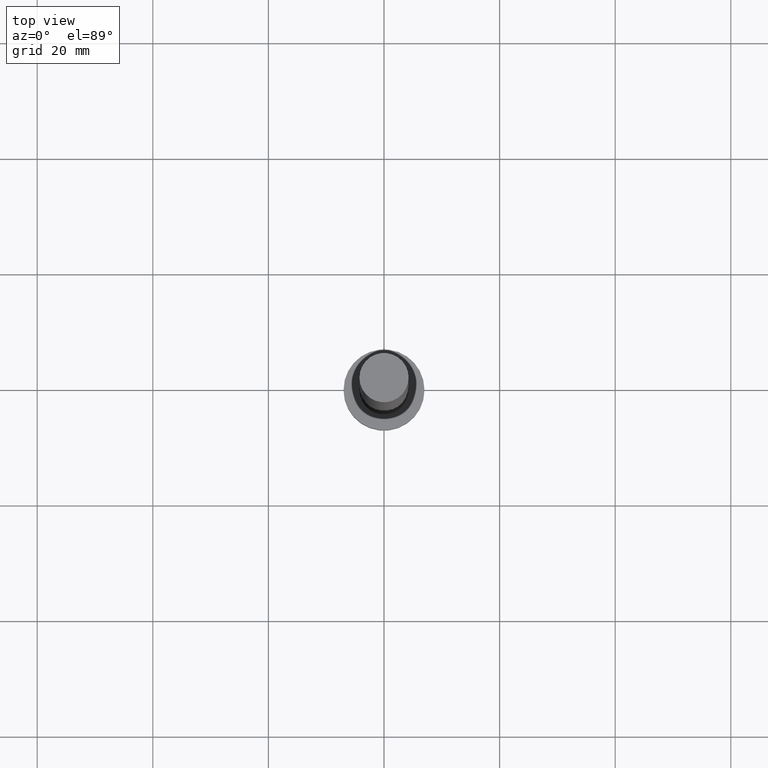
[diagram: clean part render]
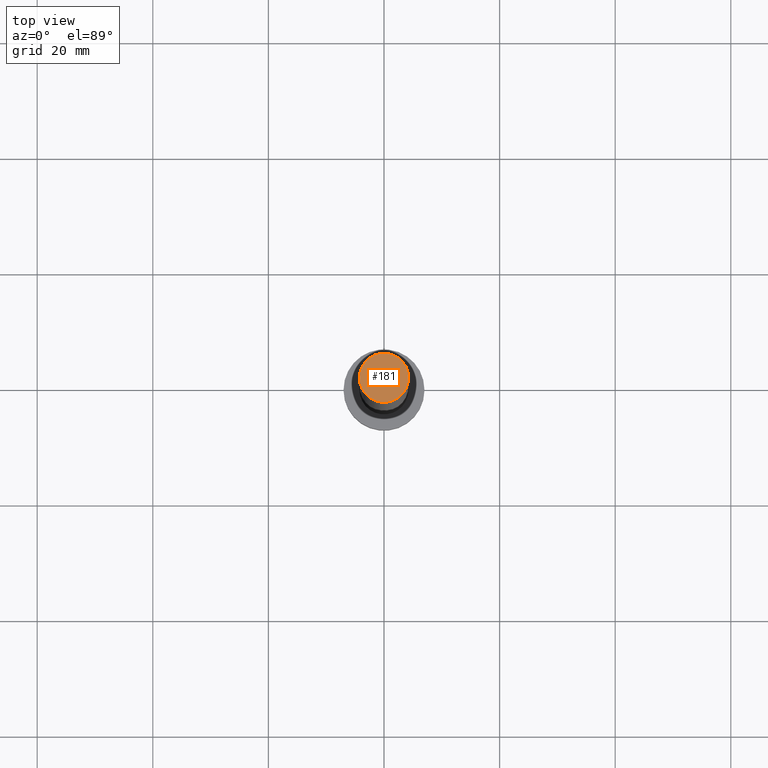
[diagram: same view with one face highlighted and labeled with its STEP entity id]
A machine part, top view. The second image highlights one B-rep face of the part: STEP entity #181.
In plain terms, the highlighted planar face has unit normal (0, 0, 1).
Its self-contained STEP definition (entity closure, byte-faithful):
#3 = DIRECTION ( 'NONE',  ( 0.000000000000000000, 0.000000000000000000, 1.000000000000000000 ) ) ;
#22 = EDGE_CURVE ( 'NONE', #67, #37, #70, .T. ) ;
#37 = VERTEX_POINT ( 'NONE', #186 ) ;
#42 = AXIS2_PLACEMENT_3D ( 'NONE', #227, #208, #143 ) ;
#49 = CARTESIAN_POINT ( 'NONE',  ( -4.250000000000000000, 0.000000000000000000, 125.0000000000000000 ) ) ;
#50 = DIRECTION ( 'NONE',  ( 0.000000000000000000, 0.000000000000000000, 1.000000000000000000 ) ) ;
#56 = EDGE_CURVE ( 'NONE', #37, #67, #148, .T. ) ;
#59 = FACE_OUTER_BOUND ( 'NONE', #71, .T. ) ;
#67 = VERTEX_POINT ( 'NONE', #49 ) ;
#70 = CIRCLE ( 'NONE', #226, 4.250000000000000000 ) ;
#71 = EDGE_LOOP ( 'NONE', ( #129, #251 ) ) ;
#72 = AXIS2_PLACEMENT_3D ( 'NONE', #144, #50, #94 ) ;
#85 = CARTESIAN_POINT ( 'NONE',  ( 0.000000000000000000, 0.000000000000000000, 125.0000000000000000 ) ) ;
#94 = DIRECTION ( 'NONE',  ( 1.000000000000000000, 0.000000000000000000, -0.000000000000000000 ) ) ;
#129 = ORIENTED_EDGE ( 'NONE', *, *, #22, .T. ) ;
#143 = DIRECTION ( 'NONE',  ( 1.000000000000000000, 0.000000000000000000, 0.000000000000000000 ) ) ;
#144 = CARTESIAN_POINT ( 'NONE',  ( 0.000000000000000000, 0.000000000000000000, 125.0000000000000000 ) ) ;
#148 = CIRCLE ( 'NONE', #42, 4.250000000000000000 ) ;
#174 = DIRECTION ( 'NONE',  ( 1.000000000000000000, 0.000000000000000000, 0.000000000000000000 ) ) ;
#181 = ADVANCED_FACE ( 'NONE', ( #59 ), #210, .T. ) ;
#186 = CARTESIAN_POINT ( 'NONE',  ( 4.250000000000000000, 5.204748896376250699E-16, 125.0000000000000000 ) ) ;
#208 = DIRECTION ( 'NONE',  ( 0.000000000000000000, 0.000000000000000000, 1.000000000000000000 ) ) ;
#210 = PLANE ( 'NONE',  #72 ) ;
#226 = AXIS2_PLACEMENT_3D ( 'NONE', #85, #3, #174 ) ;
#227 = CARTESIAN_POINT ( 'NONE',  ( 0.000000000000000000, 0.000000000000000000, 125.0000000000000000 ) ) ;
#251 = ORIENTED_EDGE ( 'NONE', *, *, #56, .T. ) ;